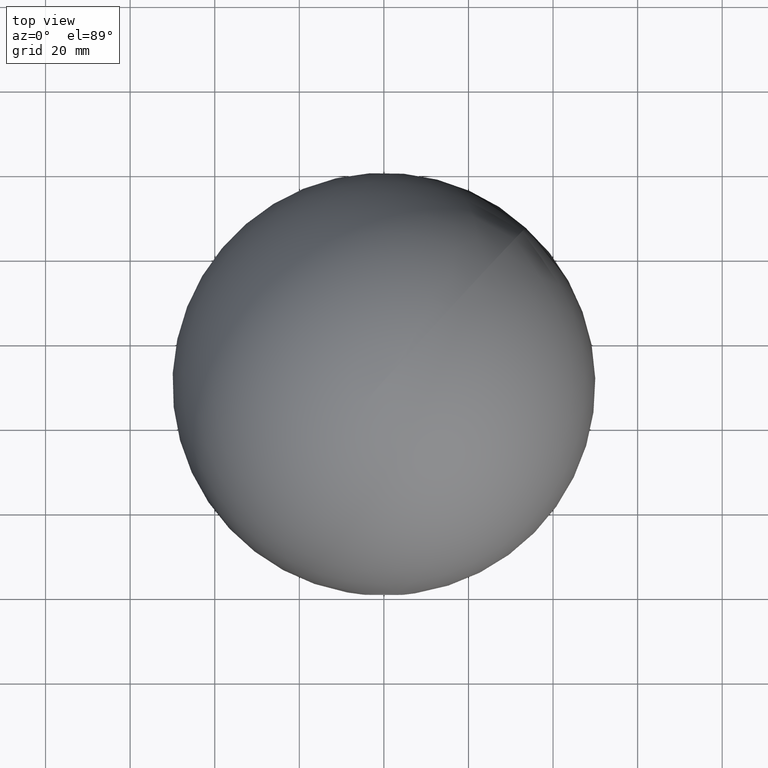
[diagram: clean part render]
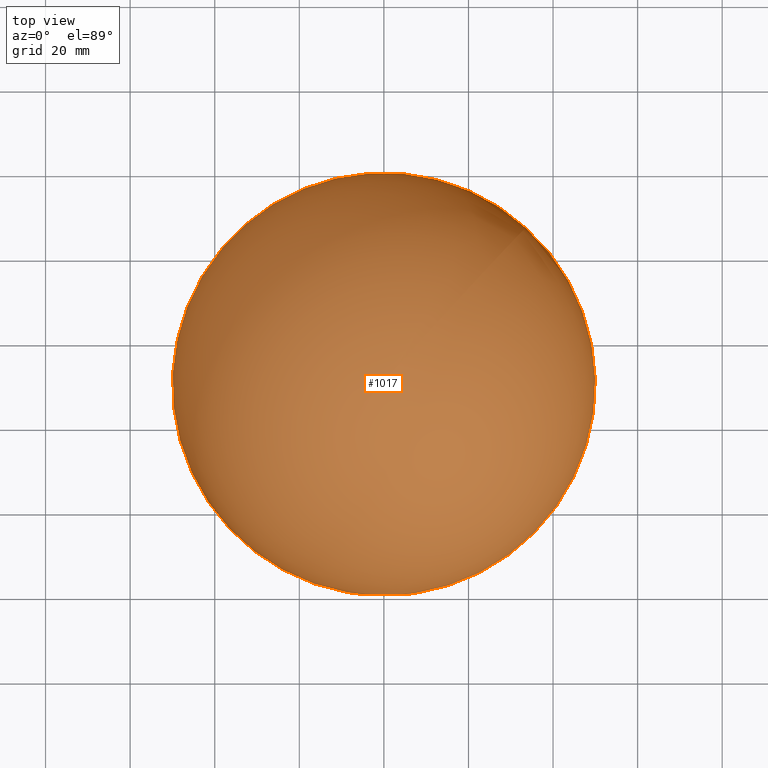
[diagram: same view with one face highlighted and labeled with its STEP entity id]
A machine part, top view. The second image highlights one B-rep face of the part: STEP entity #1017.
In plain terms, the highlighted spherical surface has radius 50 mm.
Its self-contained STEP definition (entity closure, byte-faithful):
#1017 = ADVANCED_FACE ( 'NONE', ( #8238 ), #5324, .T. ) ;
#1704 = CARTESIAN_POINT ( 'NONE',  ( -1.394373279736362900E-031, 0.2257084418743060500, 4.745513658888541800 ) ) ;
#2764 = CIRCLE ( 'NONE', #11982, 4.745513658888541800 ) ;
#4507 = DIRECTION ( 'NONE',  ( -0.0000000000000000000, 0.0000000000000000000, -1.000000000000000000 ) ) ;
#4764 = DIRECTION ( 'NONE',  ( -0.0000000000000000000, 1.000000000000000000, -0.0000000000000000000 ) ) ;
#5034 = VERTEX_POINT ( 'NONE', #1704 ) ;
#5324 = SPHERICAL_SURFACE ( 'NONE', #9010, 50.00000000000000000 ) ;
#7579 = DIRECTION ( 'NONE',  ( 0.0000000000000000000, 0.0000000000000000000, 1.000000000000000000 ) ) ;
#7704 = ORIENTED_EDGE ( 'NONE', *, *, #8109, .T. ) ;
#8109 = EDGE_CURVE ( 'NONE', #5034, #5034, #2764, .T. ) ;
#8238 = FACE_OUTER_BOUND ( 'NONE', #12724, .T. ) ;
#8414 = CARTESIAN_POINT ( 'NONE',  ( -1.394373279736362900E-031, 50.00000000000000000, 0.0000000000000000000 ) ) ;
#9010 = AXIS2_PLACEMENT_3D ( 'NONE', #8414, #4507, #12385 ) ;
#10671 = CARTESIAN_POINT ( 'NONE',  ( -1.394373279736362900E-031, 0.2257084418743060500, 0.0000000000000000000 ) ) ;
#11982 = AXIS2_PLACEMENT_3D ( 'NONE', #10671, #4764, #7579 ) ;
#12385 = DIRECTION ( 'NONE',  ( -1.000000000000000000, -1.387778780781445700E-016, 0.0000000000000000000 ) ) ;
#12724 = EDGE_LOOP ( 'NONE', ( #7704 ) ) ;